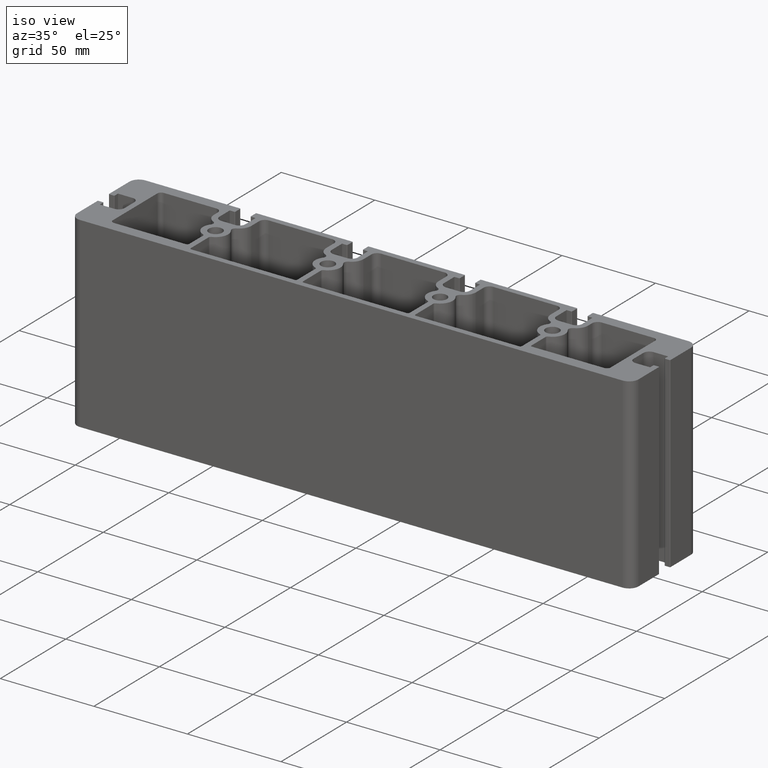
[diagram: clean part render]
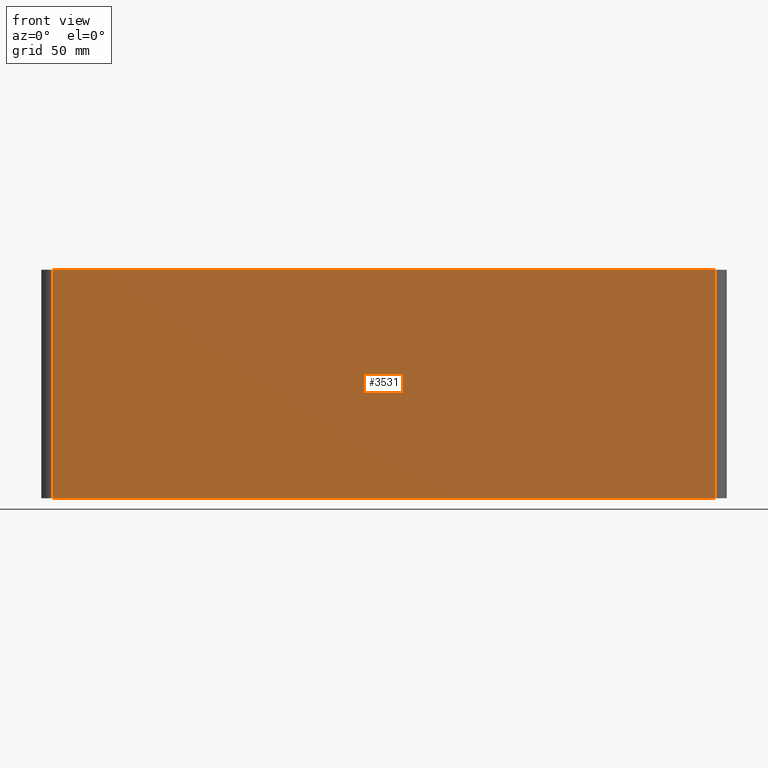
[diagram: tour spotlight — one face highlighted and labeled with its STEP entity id]
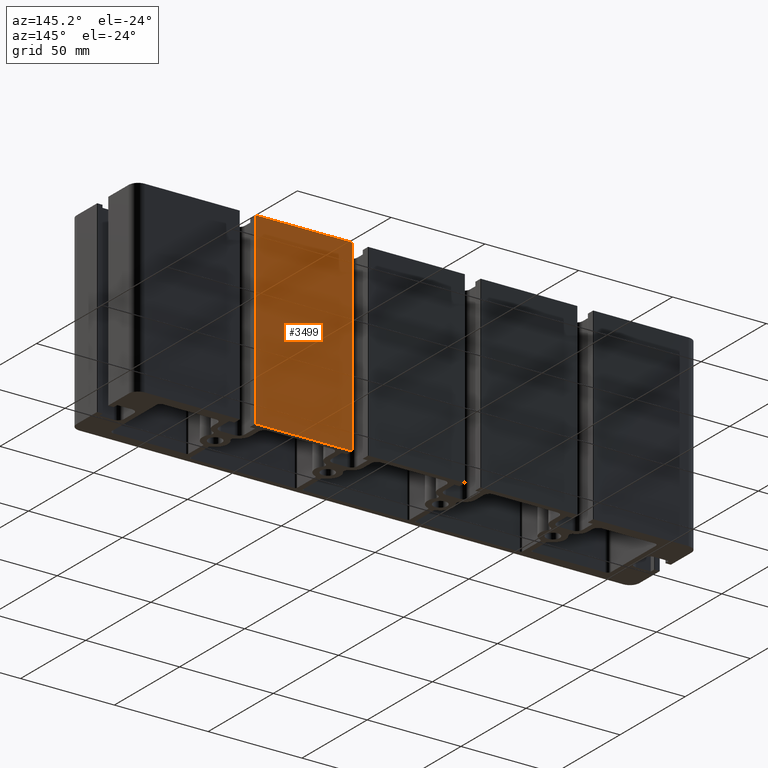
[diagram: tour spotlight — one face highlighted and labeled with its STEP entity id]
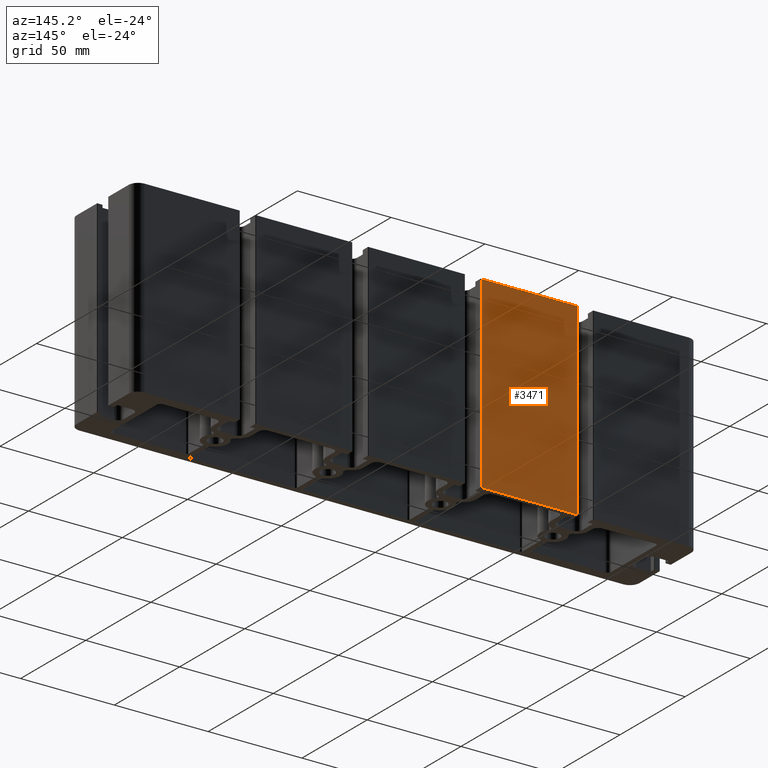
[diagram: tour spotlight — one face highlighted and labeled with its STEP entity id]
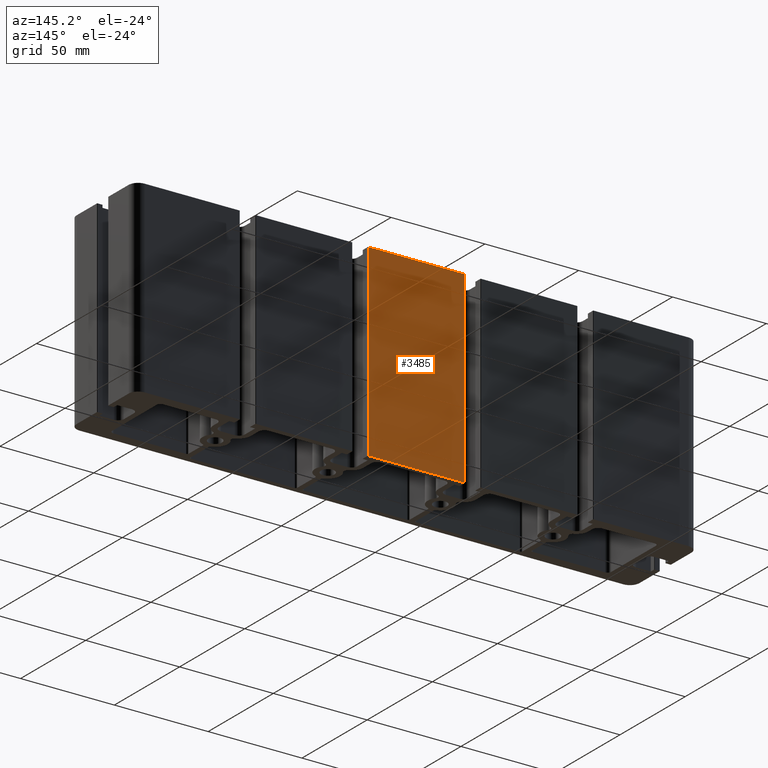
[diagram: tour spotlight — one face highlighted and labeled with its STEP entity id]
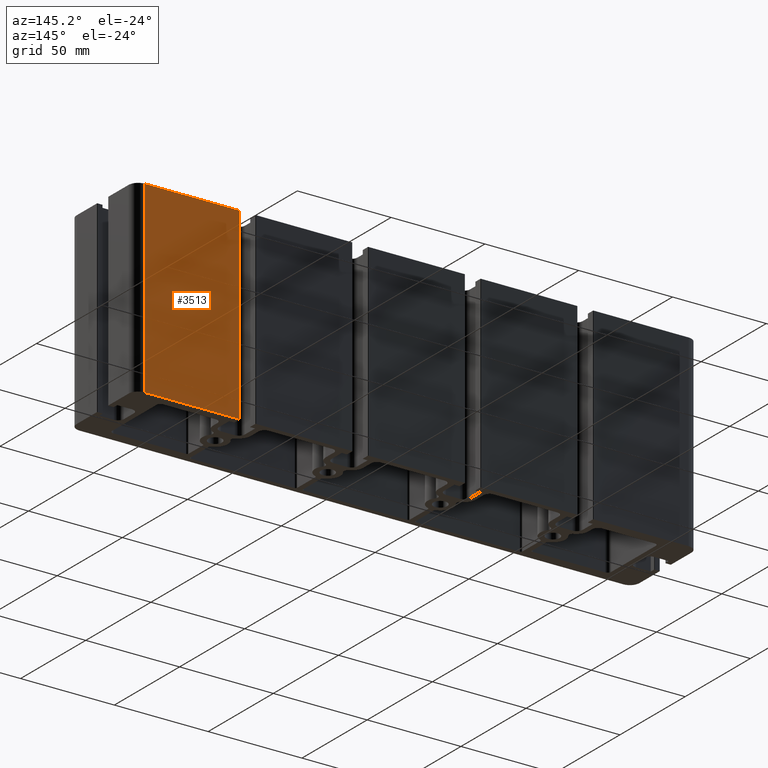
[diagram: tour spotlight — one face highlighted and labeled with its STEP entity id]
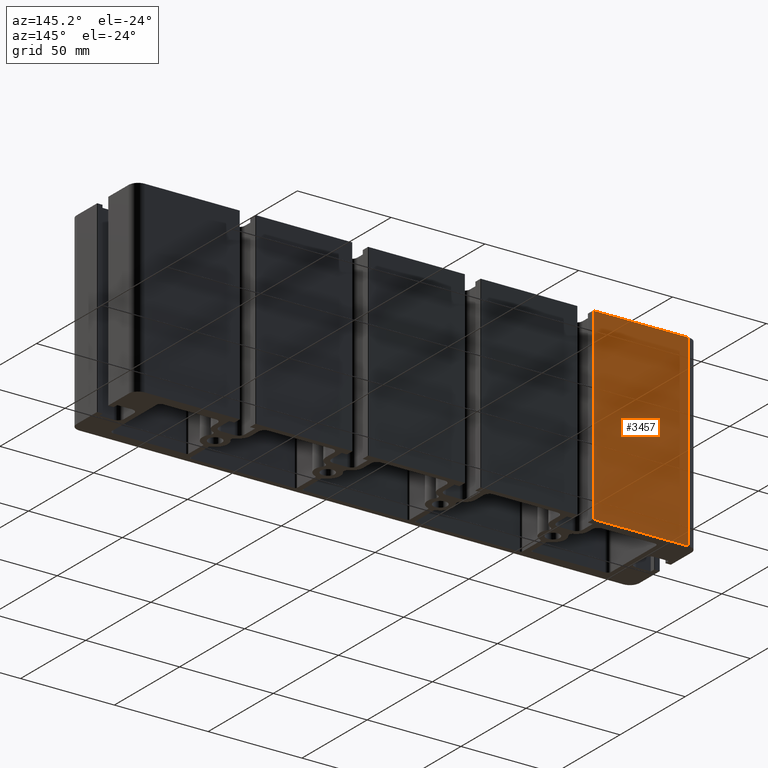
[diagram: tour spotlight — one face highlighted and labeled with its STEP entity id]
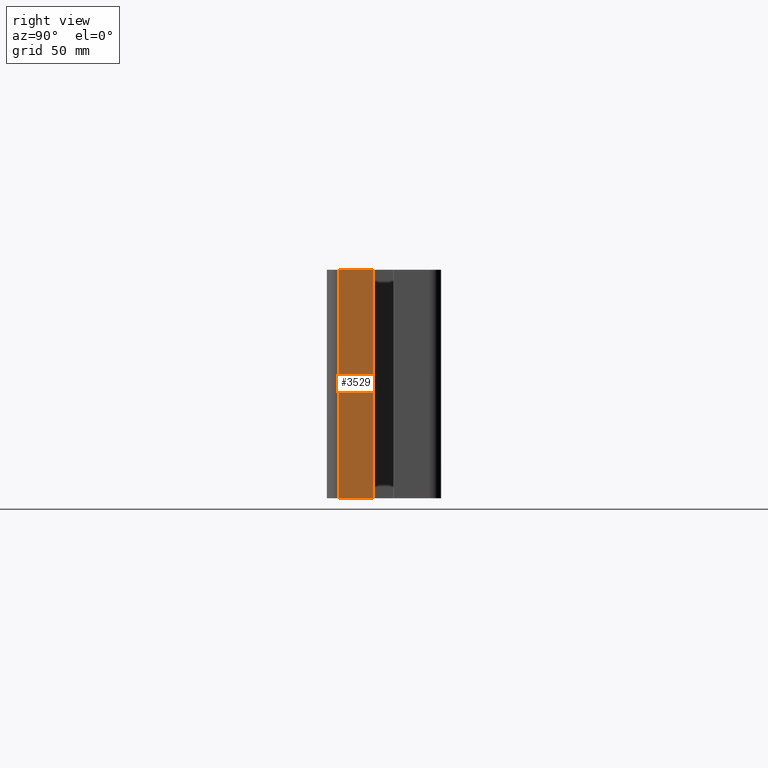
[diagram: tour spotlight — one face highlighted and labeled with its STEP entity id]
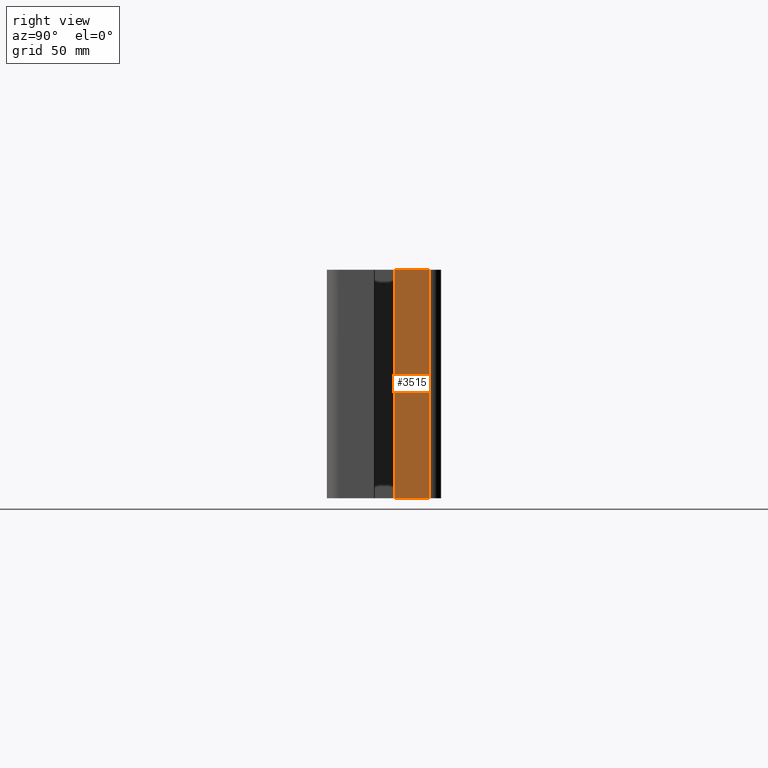
[diagram: tour spotlight — one face highlighted and labeled with its STEP entity id]
A machine part: a face-by-face anatomy tour. The part has 178 B-rep faces; the first image is the clean iso view, then the 8 largest visible faces are spotlighted one at a time (largest first), each with its STEP entity span.

Face 1 — front view, entity #3531. In plain terms, the highlighted planar face has unit normal (-0, -1, 0).
Definition (entity closure, byte-faithful):
#107=PLANE('',#3887);
#277=FACE_OUTER_BOUND('',#459,.T.);
#459=EDGE_LOOP('',(#2853,#2854,#2855,#2856));
#791=LINE('',#5944,#1123);
#792=LINE('',#5947,#1124);
#793=LINE('',#5949,#1125);
#794=LINE('',#5950,#1126);
#1123=VECTOR('',#4887,100.);
#1124=VECTOR('',#4890,290.000000000002);
#1125=VECTOR('',#4891,290.000000000002);
#1126=VECTOR('',#4892,100.);
#1669=VERTEX_POINT('',#5940);
#1670=VERTEX_POINT('',#5942);
#1671=VERTEX_POINT('',#5946);
#1672=VERTEX_POINT('',#5948);
#2175=EDGE_CURVE('',#1669,#1670,#791,.T.);
#2176=EDGE_CURVE('',#1671,#1669,#792,.T.);
#2177=EDGE_CURVE('',#1672,#1670,#793,.T.);
#2178=EDGE_CURVE('',#1671,#1672,#794,.T.);
#2853=ORIENTED_EDGE('',*,*,#2176,.T.);
#2854=ORIENTED_EDGE('',*,*,#2175,.T.);
#2855=ORIENTED_EDGE('',*,*,#2177,.F.);
#2856=ORIENTED_EDGE('',*,*,#2178,.F.);
#3531=ADVANCED_FACE('',(#277),#107,.T.);
#3887=AXIS2_PLACEMENT_3D('',#5945,#4888,#4889);
#4887=DIRECTION('',(0.,0.,1.));
#4888=DIRECTION('center_axis',(-1.22507368234499E-16,-1.,0.));
#4889=DIRECTION('ref_axis',(1.,0.,0.));
#4890=DIRECTION('',(1.,-1.22507368234499E-16,0.));
#4891=DIRECTION('',(1.,-1.22507368234499E-16,0.));
#4892=DIRECTION('',(0.,0.,1.));
#5940=CARTESIAN_POINT('',(175.,-24.9999999999999,0.));
#5942=CARTESIAN_POINT('',(175.,-24.9999999999999,100.));
#5944=CARTESIAN_POINT('',(175.,-24.9999999999999,0.));
#5945=CARTESIAN_POINT('Origin',(-115.000000000002,-24.9999999999999,0.));
#5946=CARTESIAN_POINT('',(-115.000000000002,-24.9999999999999,0.));
#5947=CARTESIAN_POINT('',(-115.000000000002,-24.9999999999999,0.));
#5948=CARTESIAN_POINT('',(-115.000000000002,-24.9999999999999,100.));
#5949=CARTESIAN_POINT('',(-115.000000000002,-24.9999999999999,100.));
#5950=CARTESIAN_POINT('',(-115.000000000002,-24.9999999999999,0.));

Face 2 — auxiliary view, entity #3499. In plain terms, the highlighted planar face has unit normal (0, 1, 0).
Definition (entity closure, byte-faithful):
#89=PLANE('',#3827);
#245=FACE_OUTER_BOUND('',#427,.T.);
#427=EDGE_LOOP('',(#2725,#2726,#2727,#2728));
#723=LINE('',#5752,#1055);
#724=LINE('',#5755,#1056);
#725=LINE('',#5757,#1057);
#726=LINE('',#5758,#1058);
#1055=VECTOR('',#4699,100.);
#1056=VECTOR('',#4702,51.0999999999986);
#1057=VECTOR('',#4703,51.0999999999986);
#1058=VECTOR('',#4704,100.);
#1605=VERTEX_POINT('',#5748);
#1606=VERTEX_POINT('',#5750);
#1607=VERTEX_POINT('',#5754);
#1608=VERTEX_POINT('',#5756);
#2079=EDGE_CURVE('',#1605,#1606,#723,.T.);
#2080=EDGE_CURVE('',#1607,#1605,#724,.T.);
#2081=EDGE_CURVE('',#1608,#1606,#725,.T.);
#2082=EDGE_CURVE('',#1607,#1608,#726,.T.);
#2725=ORIENTED_EDGE('',*,*,#2080,.T.);
#2726=ORIENTED_EDGE('',*,*,#2079,.T.);
#2727=ORIENTED_EDGE('',*,*,#2081,.F.);
#2728=ORIENTED_EDGE('',*,*,#2082,.F.);
#3499=ADVANCED_FACE('',(#245),#89,.T.);
#3827=AXIS2_PLACEMENT_3D('',#5753,#4700,#4701);
#4699=DIRECTION('',(0.,0.,1.));
#4700=DIRECTION('center_axis',(1.3557322257654E-14,1.,0.));
#4701=DIRECTION('ref_axis',(-1.,1.35003119794419E-14,0.));
#4702=DIRECTION('',(-1.,1.3557322257654E-14,0.));
#4703=DIRECTION('',(-1.,1.3557322257654E-14,0.));
#4704=DIRECTION('',(0.,0.,1.));
#5748=CARTESIAN_POINT('',(64.4500000000006,25.0000000000007,0.));
#5750=CARTESIAN_POINT('',(64.4500000000006,25.0000000000007,100.));
#5752=CARTESIAN_POINT('',(64.4500000000006,25.0000000000007,0.));
#5753=CARTESIAN_POINT('Origin',(115.549999999999,25.,0.));
#5754=CARTESIAN_POINT('',(115.549999999999,25.,0.));
#5755=CARTESIAN_POINT('',(115.549999999999,25.,0.));
#5756=CARTESIAN_POINT('',(115.549999999999,25.,100.));
#5757=CARTESIAN_POINT('',(115.549999999999,25.,100.));
#5758=CARTESIAN_POINT('',(115.549999999999,25.,0.));

Face 3 — auxiliary view, entity #3471. In plain terms, the highlighted planar face has unit normal (0, 1, 0).
Definition (entity closure, byte-faithful):
#73=PLANE('',#3775);
#217=FACE_OUTER_BOUND('',#399,.T.);
#399=EDGE_LOOP('',(#2613,#2614,#2615,#2616));
#663=LINE('',#5584,#995);
#664=LINE('',#5587,#996);
#665=LINE('',#5589,#997);
#666=LINE('',#5590,#998);
#995=VECTOR('',#4535,100.);
#996=VECTOR('',#4538,51.1000000000003);
#997=VECTOR('',#4539,51.1000000000003);
#998=VECTOR('',#4540,100.);
#1549=VERTEX_POINT('',#5580);
#1550=VERTEX_POINT('',#5582);
#1551=VERTEX_POINT('',#5586);
#1552=VERTEX_POINT('',#5588);
#1995=EDGE_CURVE('',#1549,#1550,#663,.T.);
#1996=EDGE_CURVE('',#1551,#1549,#664,.T.);
#1997=EDGE_CURVE('',#1552,#1550,#665,.T.);
#1998=EDGE_CURVE('',#1551,#1552,#666,.T.);
#2613=ORIENTED_EDGE('',*,*,#1996,.T.);
#2614=ORIENTED_EDGE('',*,*,#1995,.T.);
#2615=ORIENTED_EDGE('',*,*,#1997,.F.);
#2616=ORIENTED_EDGE('',*,*,#1998,.F.);
#3471=ADVANCED_FACE('',(#217),#73,.T.);
#3775=AXIS2_PLACEMENT_3D('',#5585,#4536,#4537);
#4535=DIRECTION('',(0.,0.,1.));
#4536=DIRECTION('center_axis',(1.73811823816071E-15,1.,0.));
#4537=DIRECTION('ref_axis',(-1.,1.77635683940025E-15,0.));
#4538=DIRECTION('',(-1.,1.73811823816071E-15,0.));
#4539=DIRECTION('',(-1.,1.73811823816071E-15,0.));
#4540=DIRECTION('',(0.,0.,1.));
#5580=CARTESIAN_POINT('',(-55.5500000000011,25.,0.));
#5582=CARTESIAN_POINT('',(-55.5500000000011,25.,100.));
#5584=CARTESIAN_POINT('',(-55.5500000000011,25.,0.));
#5585=CARTESIAN_POINT('Origin',(-4.45000000000085,24.9999999999999,0.));
#5586=CARTESIAN_POINT('',(-4.45000000000085,24.9999999999999,0.));
#5587=CARTESIAN_POINT('',(-4.45000000000085,24.9999999999999,0.));
#5588=CARTESIAN_POINT('',(-4.45000000000084,24.9999999999999,100.));
#5589=CARTESIAN_POINT('',(-4.45000000000085,24.9999999999999,100.));
#5590=CARTESIAN_POINT('',(-4.45000000000085,24.9999999999999,0.));

Face 4 — auxiliary view, entity #3485. In plain terms, the highlighted planar face has unit normal (0, 1, 0).
Definition (entity closure, byte-faithful):
#81=PLANE('',#3801);
#231=FACE_OUTER_BOUND('',#413,.T.);
#413=EDGE_LOOP('',(#2669,#2670,#2671,#2672));
#693=LINE('',#5668,#1025);
#694=LINE('',#5671,#1026);
#695=LINE('',#5673,#1027);
#696=LINE('',#5674,#1028);
#1025=VECTOR('',#4617,100.);
#1026=VECTOR('',#4620,51.0999999999985);
#1027=VECTOR('',#4621,51.0999999999985);
#1028=VECTOR('',#4622,100.);
#1577=VERTEX_POINT('',#5664);
#1578=VERTEX_POINT('',#5666);
#1579=VERTEX_POINT('',#5670);
#1580=VERTEX_POINT('',#5672);
#2037=EDGE_CURVE('',#1577,#1578,#693,.T.);
#2038=EDGE_CURVE('',#1579,#1577,#694,.T.);
#2039=EDGE_CURVE('',#1580,#1578,#695,.T.);
#2040=EDGE_CURVE('',#1579,#1580,#696,.T.);
#2669=ORIENTED_EDGE('',*,*,#2038,.T.);
#2670=ORIENTED_EDGE('',*,*,#2037,.T.);
#2671=ORIENTED_EDGE('',*,*,#2039,.F.);
#2672=ORIENTED_EDGE('',*,*,#2040,.F.);
#3485=ADVANCED_FACE('',(#231),#81,.T.);
#3801=AXIS2_PLACEMENT_3D('',#5669,#4618,#4619);
#4617=DIRECTION('',(0.,0.,1.));
#4618=DIRECTION('center_axis',(1.46001932005504E-14,1.,0.));
#4619=DIRECTION('ref_axis',(-1.,1.45661260830821E-14,0.));
#4620=DIRECTION('',(-1.,1.46001932005504E-14,0.));
#4621=DIRECTION('',(-1.,1.46001932005504E-14,0.));
#4622=DIRECTION('',(0.,0.,1.));
#5664=CARTESIAN_POINT('',(4.45000000000067,25.0000000000007,0.));
#5666=CARTESIAN_POINT('',(4.45000000000068,25.0000000000007,100.));
#5668=CARTESIAN_POINT('',(4.45000000000067,25.0000000000007,0.));
#5669=CARTESIAN_POINT('Origin',(55.5499999999992,24.9999999999999,0.));
#5670=CARTESIAN_POINT('',(55.5499999999992,24.9999999999999,0.));
#5671=CARTESIAN_POINT('',(55.5499999999992,24.9999999999999,0.));
#5672=CARTESIAN_POINT('',(55.5499999999992,24.9999999999999,100.));
#5673=CARTESIAN_POINT('',(55.5499999999992,24.9999999999999,100.));
#5674=CARTESIAN_POINT('',(55.5499999999992,24.9999999999999,0.));

Face 5 — auxiliary view, entity #3513. In plain terms, the highlighted planar face has unit normal (-0, 1, 0).
Definition (entity closure, byte-faithful):
#97=PLANE('',#3853);
#259=FACE_OUTER_BOUND('',#441,.T.);
#441=EDGE_LOOP('',(#2781,#2782,#2783,#2784));
#753=LINE('',#5836,#1085);
#754=LINE('',#5839,#1086);
#755=LINE('',#5841,#1087);
#756=LINE('',#5842,#1088);
#1085=VECTOR('',#4781,100.);
#1086=VECTOR('',#4784,50.5499999999992);
#1087=VECTOR('',#4785,50.5499999999992);
#1088=VECTOR('',#4786,100.);
#1633=VERTEX_POINT('',#5832);
#1634=VERTEX_POINT('',#5834);
#1635=VERTEX_POINT('',#5838);
#1636=VERTEX_POINT('',#5840);
#2121=EDGE_CURVE('',#1633,#1634,#753,.T.);
#2122=EDGE_CURVE('',#1635,#1633,#754,.T.);
#2123=EDGE_CURVE('',#1636,#1634,#755,.T.);
#2124=EDGE_CURVE('',#1635,#1636,#756,.T.);
#2781=ORIENTED_EDGE('',*,*,#2122,.T.);
#2782=ORIENTED_EDGE('',*,*,#2121,.T.);
#2783=ORIENTED_EDGE('',*,*,#2123,.F.);
#2784=ORIENTED_EDGE('',*,*,#2124,.F.);
#3513=ADVANCED_FACE('',(#259),#97,.T.);
#3853=AXIS2_PLACEMENT_3D('',#5837,#4782,#4783);
#4781=DIRECTION('',(0.,0.,1.));
#4782=DIRECTION('center_axis',(-3.51405902947632E-16,1.,0.));
#4783=DIRECTION('ref_axis',(-1.,-3.5527136788005E-16,0.));
#4784=DIRECTION('',(-1.,-3.51405902947632E-16,0.));
#4785=DIRECTION('',(-1.,-3.51405902947632E-16,0.));
#4786=DIRECTION('',(0.,0.,1.));
#5832=CARTESIAN_POINT('',(124.450000000001,24.9999999999999,0.));
#5834=CARTESIAN_POINT('',(124.450000000001,24.9999999999999,100.));
#5836=CARTESIAN_POINT('',(124.450000000001,24.9999999999999,0.));
#5837=CARTESIAN_POINT('Origin',(175.,25.,0.));
#5838=CARTESIAN_POINT('',(175.,25.,0.));
#5839=CARTESIAN_POINT('',(175.,25.,0.));
#5840=CARTESIAN_POINT('',(175.,25.,100.));
#5841=CARTESIAN_POINT('',(175.,25.,100.));
#5842=CARTESIAN_POINT('',(175.,25.,0.));

Face 6 — auxiliary view, entity #3457. In plain terms, the highlighted planar face has unit normal (-0, 1, 0).
Definition (entity closure, byte-faithful):
#65=PLANE('',#3749);
#203=FACE_OUTER_BOUND('',#385,.T.);
#385=EDGE_LOOP('',(#2557,#2558,#2559,#2560));
#633=LINE('',#5501,#965);
#634=LINE('',#5503,#966);
#635=LINE('',#5505,#967);
#636=LINE('',#5506,#968);
#965=VECTOR('',#4455,50.5499999999993);
#966=VECTOR('',#4456,100.);
#967=VECTOR('',#4457,50.5499999999993);
#968=VECTOR('',#4458,100.);
#1521=VERTEX_POINT('',#5499);
#1522=VERTEX_POINT('',#5500);
#1523=VERTEX_POINT('',#5502);
#1524=VERTEX_POINT('',#5504);
#1953=EDGE_CURVE('',#1521,#1522,#633,.T.);
#1954=EDGE_CURVE('',#1522,#1523,#634,.T.);
#1955=EDGE_CURVE('',#1524,#1523,#635,.T.);
#1956=EDGE_CURVE('',#1521,#1524,#636,.T.);
#2557=ORIENTED_EDGE('',*,*,#1953,.T.);
#2558=ORIENTED_EDGE('',*,*,#1954,.T.);
#2559=ORIENTED_EDGE('',*,*,#1955,.F.);
#2560=ORIENTED_EDGE('',*,*,#1956,.F.);
#3457=ADVANCED_FACE('',(#203),#65,.T.);
#3749=AXIS2_PLACEMENT_3D('',#5498,#4453,#4454);
#4453=DIRECTION('center_axis',(-1.37048302149576E-14,1.,0.));
#4454=DIRECTION('ref_axis',(-1.,-1.3855583347322E-14,0.));
#4455=DIRECTION('',(-1.,-1.37048302149576E-14,0.));
#4456=DIRECTION('',(0.,0.,1.));
#4457=DIRECTION('',(-1.,-1.37048302149576E-14,0.));
#4458=DIRECTION('',(0.,0.,1.));
#5498=CARTESIAN_POINT('Origin',(-64.4500000000026,25.0000000000006,0.));
#5499=CARTESIAN_POINT('',(-64.4500000000026,25.0000000000006,0.));
#5500=CARTESIAN_POINT('',(-115.000000000002,24.9999999999999,0.));
#5501=CARTESIAN_POINT('',(-64.4500000000026,25.0000000000006,0.));
#5502=CARTESIAN_POINT('',(-115.000000000002,24.9999999999999,100.));
#5503=CARTESIAN_POINT('',(-115.000000000002,24.9999999999999,0.));
#5504=CARTESIAN_POINT('',(-64.4500000000026,25.0000000000006,100.));
#5505=CARTESIAN_POINT('',(-64.4500000000026,25.0000000000006,100.));
#5506=CARTESIAN_POINT('',(-64.4500000000026,25.0000000000006,0.));

Face 7 — right view, entity #3529. In plain terms, the highlighted planar face has unit normal (1, -0, 0).
Definition (entity closure, byte-faithful):
#106=PLANE('',#3883);
#275=FACE_OUTER_BOUND('',#457,.T.);
#457=EDGE_LOOP('',(#2845,#2846,#2847,#2848));
#787=LINE('',#5932,#1119);
#788=LINE('',#5935,#1120);
#789=LINE('',#5937,#1121);
#790=LINE('',#5938,#1122);
#1119=VECTOR('',#4875,100.);
#1120=VECTOR('',#4878,15.5499999999993);
#1121=VECTOR('',#4879,15.5499999999993);
#1122=VECTOR('',#4880,100.);
#1665=VERTEX_POINT('',#5928);
#1666=VERTEX_POINT('',#5930);
#1667=VERTEX_POINT('',#5934);
#1668=VERTEX_POINT('',#5936);
#2169=EDGE_CURVE('',#1665,#1666,#787,.T.);
#2170=EDGE_CURVE('',#1667,#1665,#788,.T.);
#2171=EDGE_CURVE('',#1668,#1666,#789,.T.);
#2172=EDGE_CURVE('',#1667,#1668,#790,.T.);
#2845=ORIENTED_EDGE('',*,*,#2170,.T.);
#2846=ORIENTED_EDGE('',*,*,#2169,.T.);
#2847=ORIENTED_EDGE('',*,*,#2171,.F.);
#2848=ORIENTED_EDGE('',*,*,#2172,.F.);
#3529=ADVANCED_FACE('',(#275),#106,.T.);
#3883=AXIS2_PLACEMENT_3D('',#5933,#4876,#4877);
#4875=DIRECTION('',(0.,0.,1.));
#4876=DIRECTION('center_axis',(1.,-1.14235166520922E-14,0.));
#4877=DIRECTION('ref_axis',(1.13686837721616E-14,1.,0.));
#4878=DIRECTION('',(1.14235166520922E-14,1.,0.));
#4879=DIRECTION('',(1.14235166520922E-14,1.,0.));
#4880=DIRECTION('',(0.,0.,1.));
#5928=CARTESIAN_POINT('',(180.,-4.4500000000008,0.));
#5930=CARTESIAN_POINT('',(180.,-4.4500000000008,100.));
#5932=CARTESIAN_POINT('',(180.,-4.4500000000008,0.));
#5933=CARTESIAN_POINT('Origin',(180.,-20.0000000000001,0.));
#5934=CARTESIAN_POINT('',(180.,-20.0000000000001,0.));
#5935=CARTESIAN_POINT('',(180.,-20.0000000000001,0.));
#5936=CARTESIAN_POINT('',(180.,-20.0000000000001,100.));
#5937=CARTESIAN_POINT('',(180.,-20.0000000000001,100.));
#5938=CARTESIAN_POINT('',(180.,-20.0000000000001,0.));

Face 8 — right view, entity #3515. In plain terms, the highlighted planar face has unit normal (1, 0, 0).
Definition (entity closure, byte-faithful):
#98=PLANE('',#3857);
#261=FACE_OUTER_BOUND('',#443,.T.);
#443=EDGE_LOOP('',(#2789,#2790,#2791,#2792));
#757=LINE('',#5848,#1089);
#758=LINE('',#5851,#1090);
#759=LINE('',#5853,#1091);
#760=LINE('',#5854,#1092);
#1089=VECTOR('',#4793,100.);
#1090=VECTOR('',#4796,15.5499999999991);
#1091=VECTOR('',#4797,15.5499999999991);
#1092=VECTOR('',#4798,100.);
#1637=VERTEX_POINT('',#5844);
#1638=VERTEX_POINT('',#5846);
#1639=VERTEX_POINT('',#5850);
#1640=VERTEX_POINT('',#5852);
#2127=EDGE_CURVE('',#1637,#1638,#757,.T.);
#2128=EDGE_CURVE('',#1639,#1637,#758,.T.);
#2129=EDGE_CURVE('',#1640,#1638,#759,.T.);
#2130=EDGE_CURVE('',#1639,#1640,#760,.T.);
#2789=ORIENTED_EDGE('',*,*,#2128,.T.);
#2790=ORIENTED_EDGE('',*,*,#2127,.T.);
#2791=ORIENTED_EDGE('',*,*,#2129,.F.);
#2792=ORIENTED_EDGE('',*,*,#2130,.F.);
#3515=ADVANCED_FACE('',(#261),#98,.T.);
#3857=AXIS2_PLACEMENT_3D('',#5849,#4794,#4795);
#4793=DIRECTION('',(0.,0.,1.));
#4794=DIRECTION('center_axis',(1.,2.28470333041846E-15,0.));
#4795=DIRECTION('ref_axis',(-2.8421709430404E-15,1.,0.));
#4796=DIRECTION('',(-2.28470333041846E-15,1.,0.));
#4797=DIRECTION('',(-2.28470333041846E-15,1.,0.));
#4798=DIRECTION('',(0.,0.,1.));
#5844=CARTESIAN_POINT('',(180.,19.9999999999997,0.));
#5846=CARTESIAN_POINT('',(180.,19.9999999999997,100.));
#5848=CARTESIAN_POINT('',(180.,19.9999999999997,0.));
#5849=CARTESIAN_POINT('Origin',(180.,4.45000000000061,0.));
#5850=CARTESIAN_POINT('',(180.,4.45000000000061,0.));
#5851=CARTESIAN_POINT('',(180.,4.45000000000061,0.));
#5852=CARTESIAN_POINT('',(180.,4.45000000000061,100.));
#5853=CARTESIAN_POINT('',(180.,4.45000000000061,100.));
#5854=CARTESIAN_POINT('',(180.,4.45000000000061,0.));